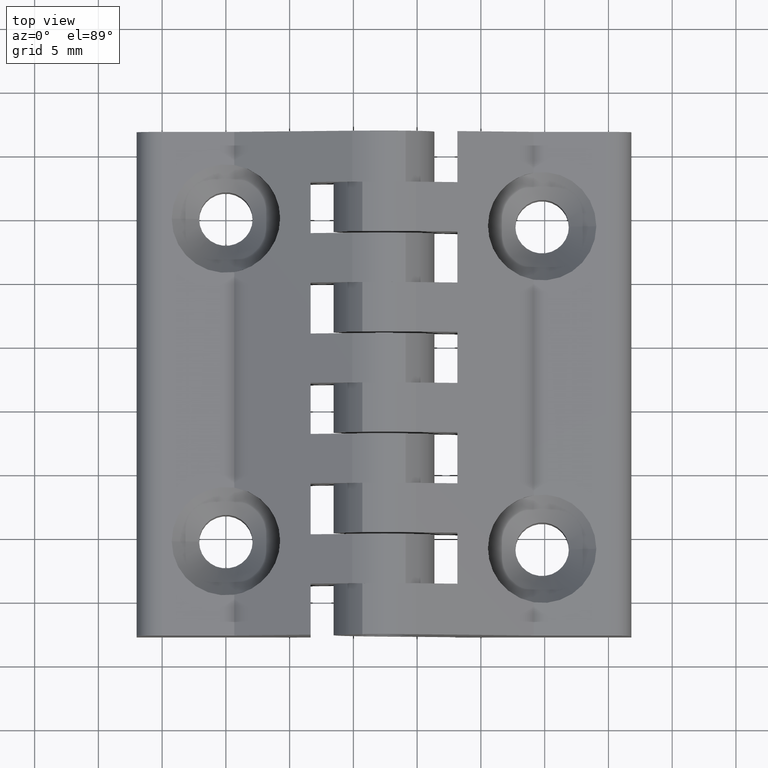
[diagram: clean part render]
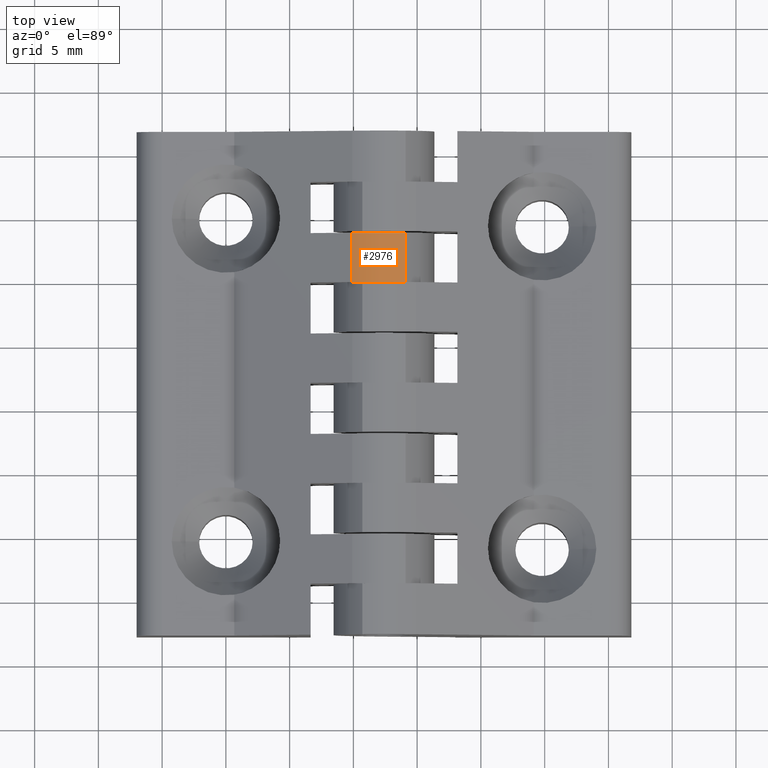
[diagram: same view with one face highlighted and labeled with its STEP entity id]
A machine part, top view. The second image highlights one B-rep face of the part: STEP entity #2976.
In plain terms, the highlighted cylindrical surface (partial cylindrical patch) has radius 5 mm, axis along (0, 1, -0).
Its self-contained STEP definition (entity closure, byte-faithful):
#1921=CARTESIAN_POINT('',(14.099973212716776,-5.075000000027557,14.708801062030460));
#1922=VERTEX_POINT('',#1921);
#1923=CARTESIAN_POINT('',(14.099973212716776,-1.200000000027553,14.708801062030460));
#1924=VERTEX_POINT('',#1923);
#1925=CARTESIAN_POINT('',(14.099973212716780,-5.075000000027558,14.708801062030460));
#1926=DIRECTION('',(0.0,1.0,0.0));
#1927=VECTOR('',#1926,3.875000000000004);
#1928=LINE('',#1925,#1927);
#1929=EDGE_CURVE('',#1922,#1924,#1928,.T.);
#2767=CARTESIAN_POINT('',(9.899999999960244,-1.200000000027553,14.336791218223027));
#2768=VERTEX_POINT('',#2767);
#2936=CARTESIAN_POINT('',(9.899999999960244,-5.075000000027557,14.336791218223027));
#2937=VERTEX_POINT('',#2936);
#2944=CARTESIAN_POINT('',(9.899999999960247,-5.075000000027558,14.336791218223027));
#2945=DIRECTION('',(0.0,1.0,0.0));
#2946=VECTOR('',#2945,3.875000000000004);
#2947=LINE('',#2944,#2946);
#2948=EDGE_CURVE('',#2937,#2768,#2947,.T.);
#2953=CARTESIAN_POINT('',(12.399999999950438,-32.699999999869554,10.006664199318040));
#2954=DIRECTION('',(1.224647E-016,1.0,-6.123234E-017));
#2955=DIRECTION('',(-0.500000000000019,1.142611E-016,0.866025403784428));
#2956=AXIS2_PLACEMENT_3D('',#2953,#2954,#2955);
#2957=CYLINDRICAL_SURFACE('',#2956,4.999999999980201);
#2958=ORIENTED_EDGE('',*,*,#2948,.F.);
#2959=CARTESIAN_POINT('',(12.399999999950438,-5.075000000027557,10.006664199318038));
#2960=DIRECTION('',(-1.224647E-016,-1.0,6.123234E-017));
#2961=DIRECTION('',(-0.500000000000019,1.142611E-016,0.866025403784428));
#2962=AXIS2_PLACEMENT_3D('',#2959,#2960,#2961);
#2963=CIRCLE('',#2962,4.999999999980201);
#2964=EDGE_CURVE('',#1922,#2937,#2963,.T.);
#2965=ORIENTED_EDGE('',*,*,#2964,.F.);
#2966=ORIENTED_EDGE('',*,*,#1929,.T.);
#2967=CARTESIAN_POINT('',(12.399999999950438,-1.200000000027557,10.006664199318038));
#2968=DIRECTION('',(1.224647E-016,1.0,-6.123234E-017));
#2969=DIRECTION('',(-0.500000000000019,1.142611E-016,0.866025403784428));
#2970=AXIS2_PLACEMENT_3D('',#2967,#2968,#2969);
#2971=CIRCLE('',#2970,4.999999999980201);
#2972=EDGE_CURVE('',#2768,#1924,#2971,.T.);
#2973=ORIENTED_EDGE('',*,*,#2972,.F.);
#2974=EDGE_LOOP('',(#2958,#2965,#2966,#2973));
#2975=FACE_OUTER_BOUND('',#2974,.T.);
#2976=ADVANCED_FACE('',(#2975),#2957,.T.);